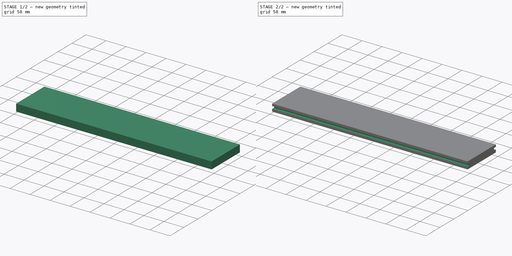
[diagram: build sequence overview — one tinted view per stage of 2, left to right]
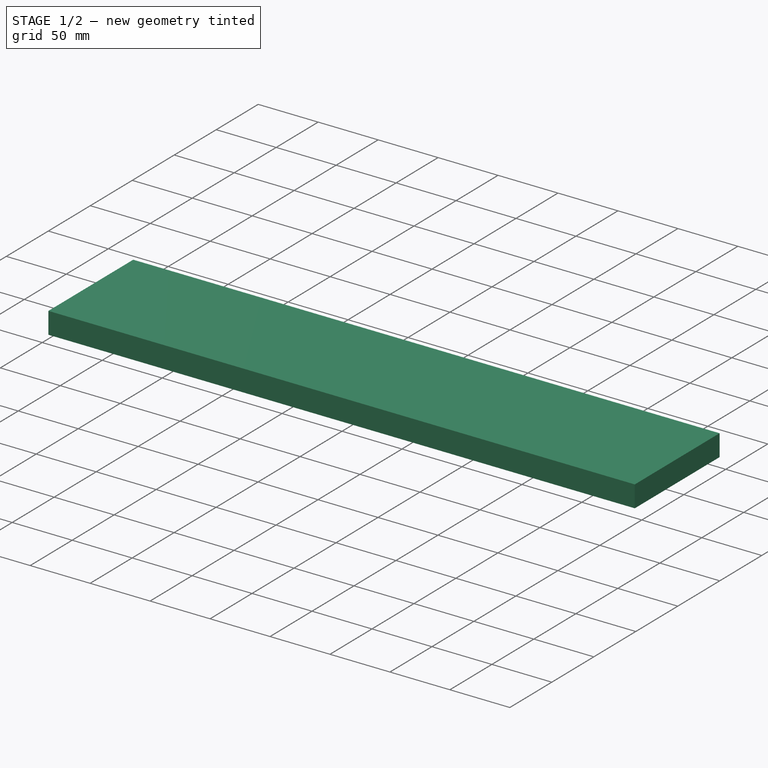
[diagram: stage 1 of 2 — iso view after this stage's code; geometry added in this stage tinted green]
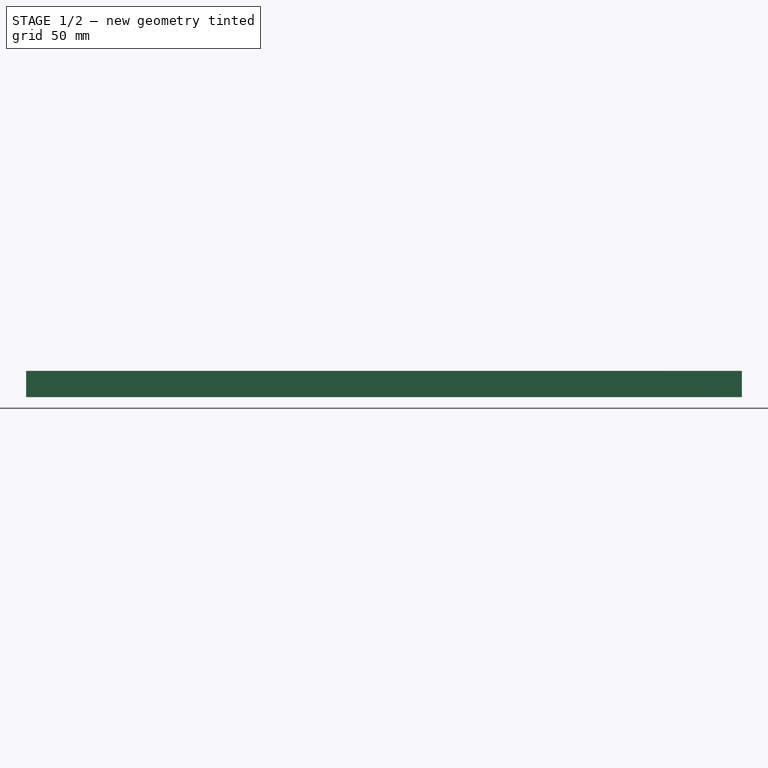
[diagram: stage 1 of 2 — front view after this stage's code; geometry added in this stage tinted green]
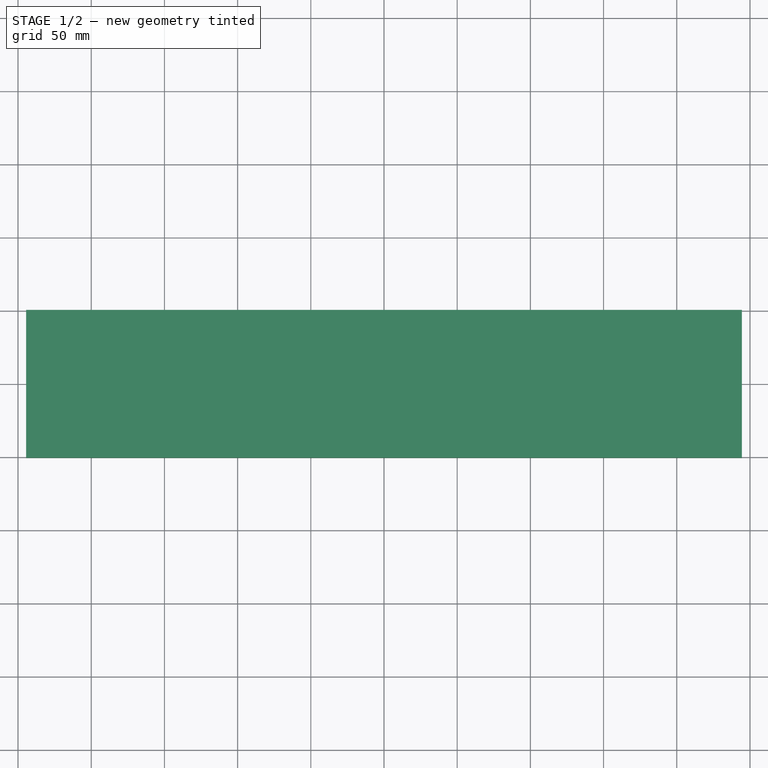
[diagram: stage 1 of 2 — top view after this stage's code; geometry added in this stage tinted green]
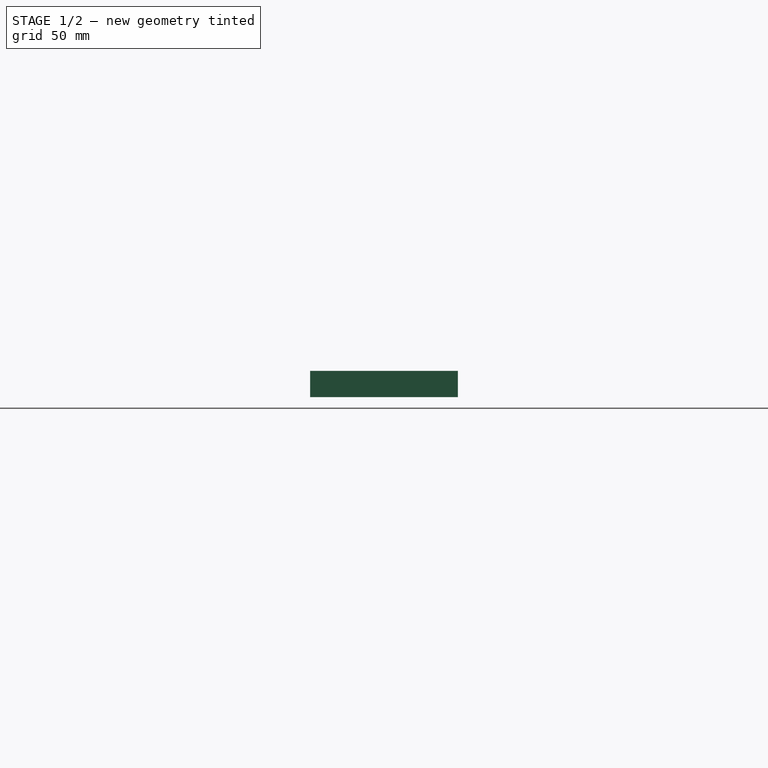
[diagram: stage 1 of 2 — right view after this stage's code; geometry added in this stage tinted green]
FCSTD DOCUMENT  (FreeCAD 1.0R39109 (Git))
Label: 75_drawer_box_stabilizer
License: All rights reserved
LicenseURL: http://en.wikipedia.org/wiki/All_rights_reserved
objects: Sketcher::SketchObject×2, Spreadsheet::Sheet×1, PartDesign::Pad×1, PartDesign::Pocket×1, PartDesign::Body×1
note: 11 computed .brp shape members not serialized (recipe doc carries the construction recipe); baked Part::Feature solids carry a one-line shape summary decoded from their .brp

FEATURE [Spreadsheet::Sheet] Spreadsheet
  cells = A2='length; B2(length)=489; A3='width; B3(width)=101; A4='height; B4(height)=18
FEATURE [Sketcher::SketchObject] Sketch
  ArcFitTolerance = 0
  AttachmentSupport = -> [XY_Plane]
  FullyConstrained = true
  MakeInternals = false
  MapMode = 5
  expr: Constraints[11] = Spreadsheet.length
  expr: Constraints[12] = Spreadsheet.width
  sketch-geometry (5):
    g0: LineSegment StartX=-244.5 StartY=50.5 StartZ=0 EndX=244.5 EndY=50.5 EndZ=0
    g1: LineSegment StartX=244.5 StartY=50.5 StartZ=0 EndX=244.5 EndY=-50.5 EndZ=0
    g2: LineSegment StartX=244.5 StartY=-50.5 StartZ=0 EndX=-244.5 EndY=-50.5 EndZ=0
    g3: LineSegment StartX=-244.5 StartY=-50.5 StartZ=0 EndX=-244.5 EndY=50.5 EndZ=0
    g4: LineSegment [constr] StartX=-244.5 StartY=50.5 StartZ=0 EndX=244.5 EndY=-50.5 EndZ=0
  constraints (13):
    c: Coincident(g0,g1)
    c: Coincident(g1,g2)
    c: Coincident(g2,g3)
    c: Coincident(g3,g0)
    c: Horizontal(g0)
    c: Horizontal(g2)
    c: Vertical(g1)
    c: Vertical(g3)
    c: Coincident(g4,g1)
    c: Coincident(g0,g4)
    c: Symmetric(g0,g1,g-1)
    c: Distance(g0,g0) = 489
    c: Distance(g0,g2) = 101
FEATURE [PartDesign::Pad] Pad
  Direction = (0,0,1)
  Length = 18
  Length2 = 10
  Profile = -> Sketch
  ReferenceAxis = -> Sketch [N_Axis]
  Suppressed = false
  Type = 0
  expr: Length = Spreadsheet.height
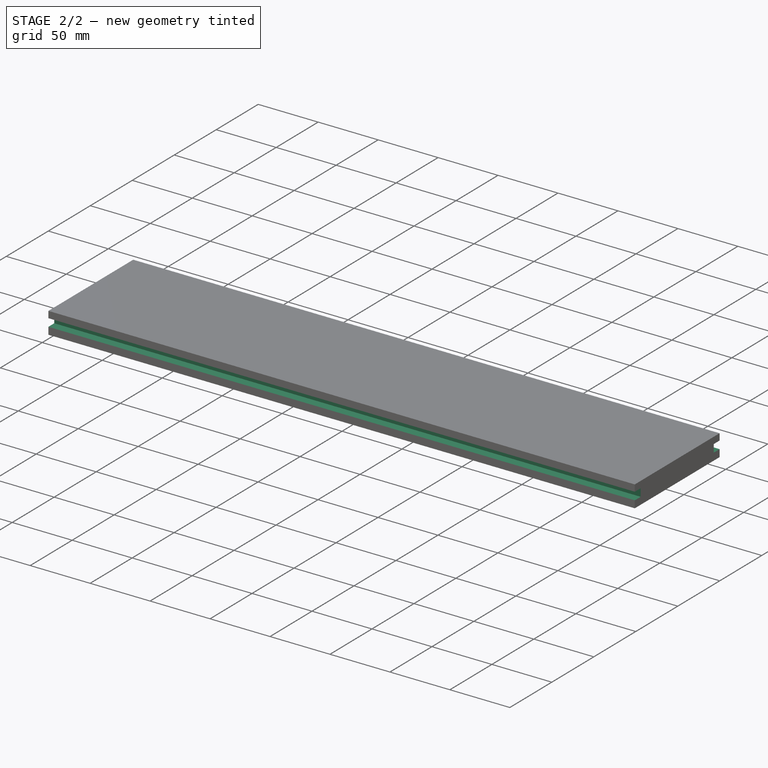
[diagram: stage 2 of 2 — iso view after this stage's code; geometry added in this stage tinted green]
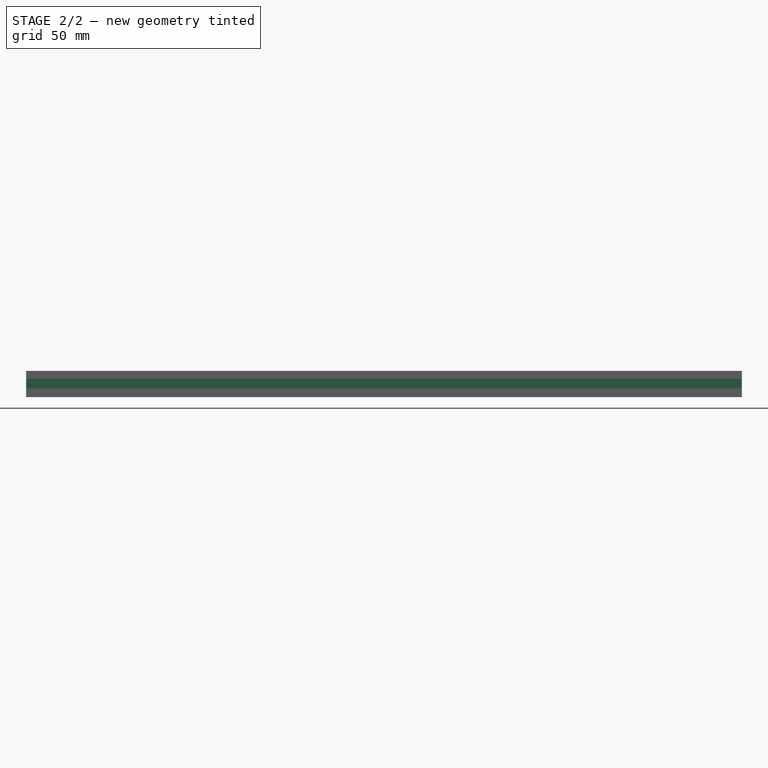
[diagram: stage 2 of 2 — front view after this stage's code; geometry added in this stage tinted green]
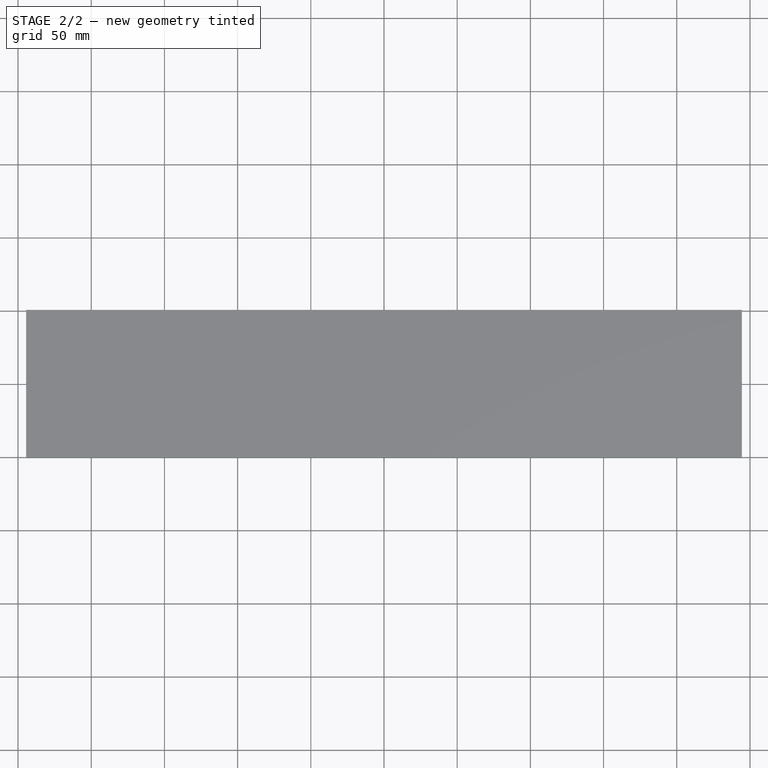
[diagram: stage 2 of 2 — top view after this stage's code; geometry added in this stage tinted green]
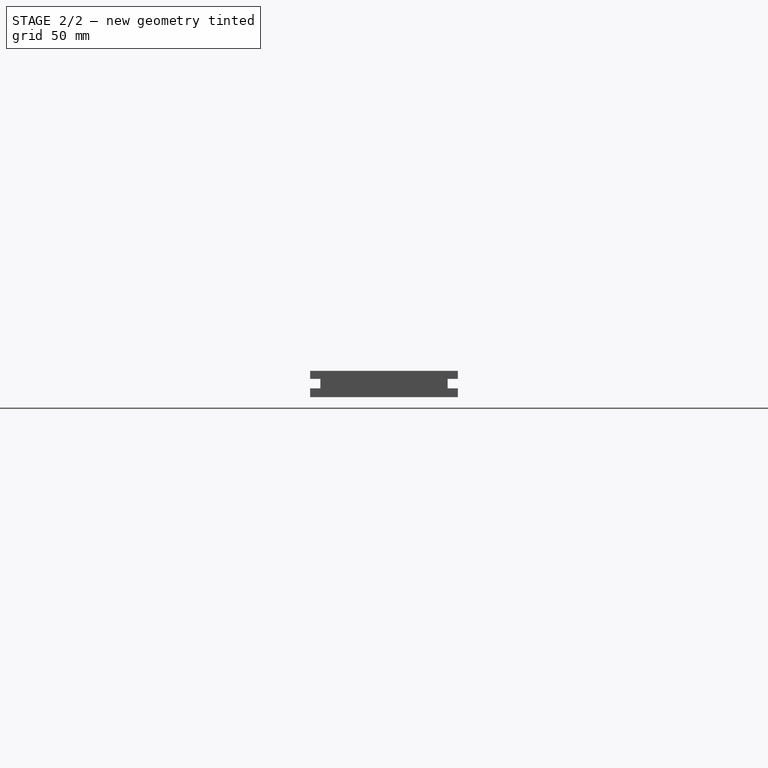
[diagram: stage 2 of 2 — right view after this stage's code; geometry added in this stage tinted green]
FEATURE [Sketcher::SketchObject] Sketch001
  ArcFitTolerance = 1e-06
  AttachmentSupport = -> [YZ_Plane]
  ExternalGeometry = -> [Pad]
  FullyConstrained = true
  MakeInternals = false
  MapMode = 5
  Placement = pos=(0,0,0) rot=(0.57735,0.57735,0.57735;2.0944rad)
  sketch-geometry (8):
    g0: LineSegment StartX=50.5 StartY=6 StartZ=0 EndX=50.5 EndY=12.5 EndZ=0
    g1: LineSegment StartX=50.5 StartY=12.5 StartZ=0 EndX=43.5 EndY=12.5 EndZ=0
    g2: LineSegment StartX=43.5 StartY=12.5 StartZ=0 EndX=43.5 EndY=6 EndZ=0
    g3: LineSegment StartX=43.5 StartY=6 StartZ=0 EndX=50.5 EndY=6 EndZ=0
    g4: LineSegment StartX=-50.5 StartY=12.5 StartZ=0 EndX=-50.5 EndY=6 EndZ=0
    g5: LineSegment StartX=-50.5 StartY=6 StartZ=0 EndX=-43.5 EndY=6 EndZ=0
    g6: LineSegment StartX=-43.5 StartY=6 StartZ=0 EndX=-43.5 EndY=12.5 EndZ=0
    g7: LineSegment StartX=-43.5 StartY=12.5 StartZ=0 EndX=-50.5 EndY=12.5 EndZ=0
  constraints (24):
    c: Coincident(g0,g1)
    c: Coincident(g1,g2)
    c: Coincident(g2,g3)
    c: Coincident(g3,g0)
    c: Vertical(g0)
    c: Vertical(g2)
    c: Horizontal(g1)
    c: Horizontal(g3)
    c: PointOnObject(g0,g-5)
    c: Coincident(g4,g5)
    c: Coincident(g5,g6)
    c: Coincident(g6,g7)
    c: Coincident(g7,g4)
    c: Vertical(g4)
    c: Vertical(g6)
    c: Horizontal(g5)
    c: Horizontal(g7)
    c: PointOnObject(g4,g-3)
    c: DistanceX(g7,g7) = 7
    c: DistanceY(g6,g6) = 6.5
    c: Distance(g-6,g5) = 6
    c: Distance(g-6,g3) = 6
    c: Equal(g7,g1)
    c: Equal(g6,g2)
FEATURE [PartDesign::Pocket] Pocket
  BaseFeature = -> Pad
  Direction = (-1,0,0)
  Length = 550
  Length2 = 555
  Profile = -> Sketch001
  ReferenceAxis = -> Sketch001 [N_Axis]
  Suppressed = false
  Type = 4
FEATURE [PartDesign::Body] Body
  AllowCompound = false
  Group = -> [Sketch,Pad,Sketch001,Pocket]
  Origin = -> Origin
  Tip = -> Pocket
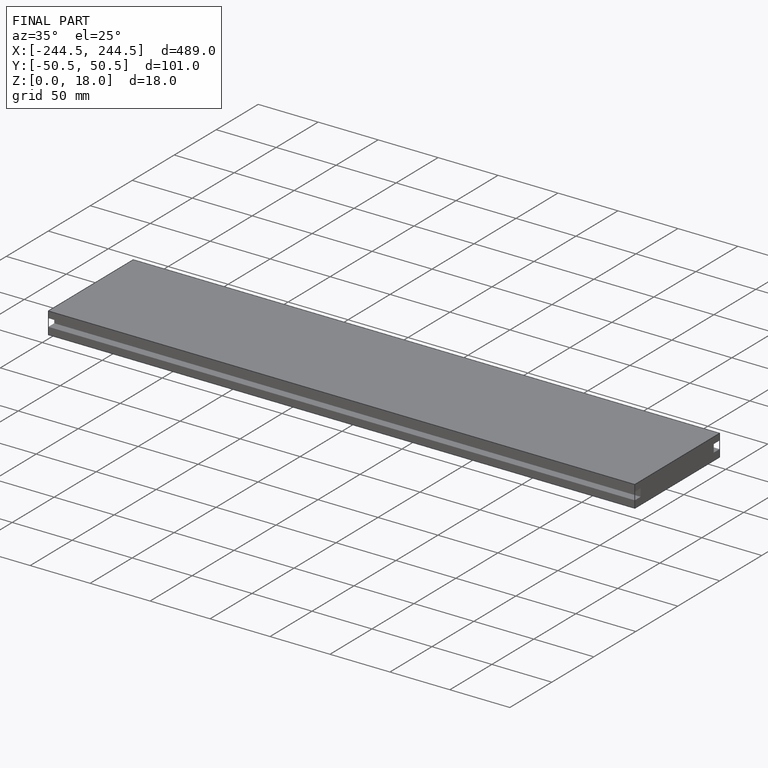
[diagram: finished part — iso view with bounding-box wireframe]
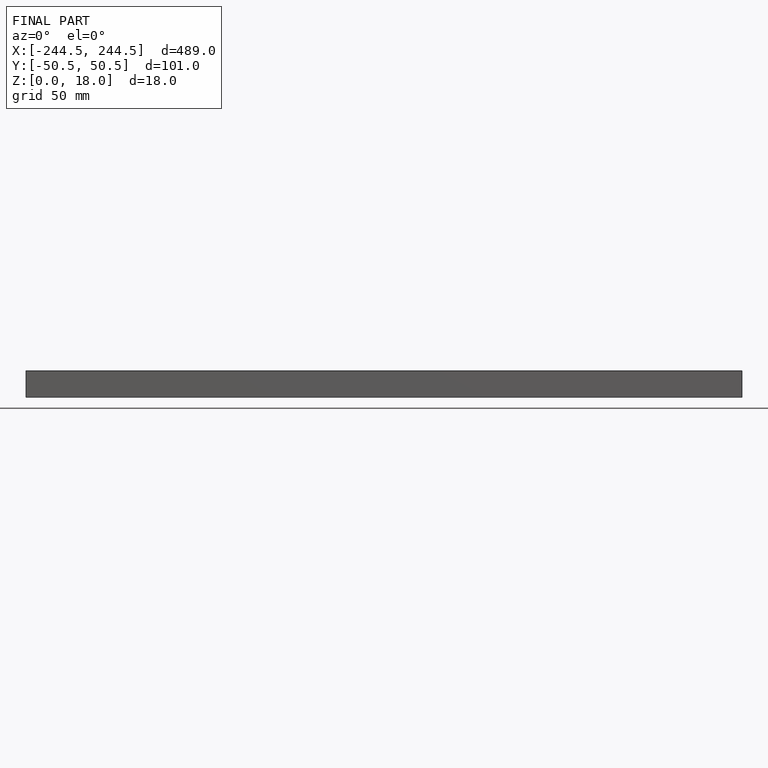
[diagram: finished part — front view with bounding-box wireframe]
